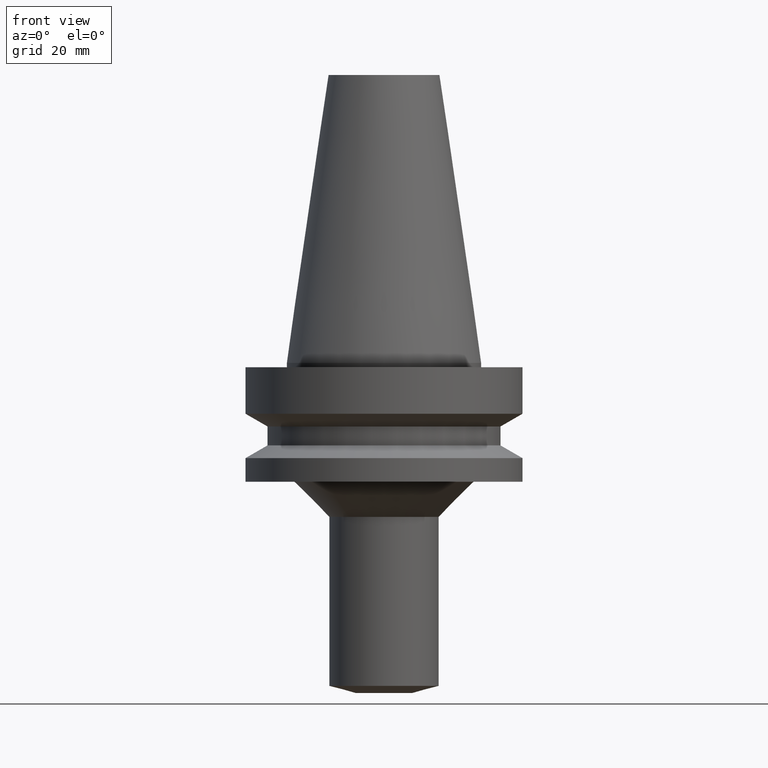
[diagram: clean part render]
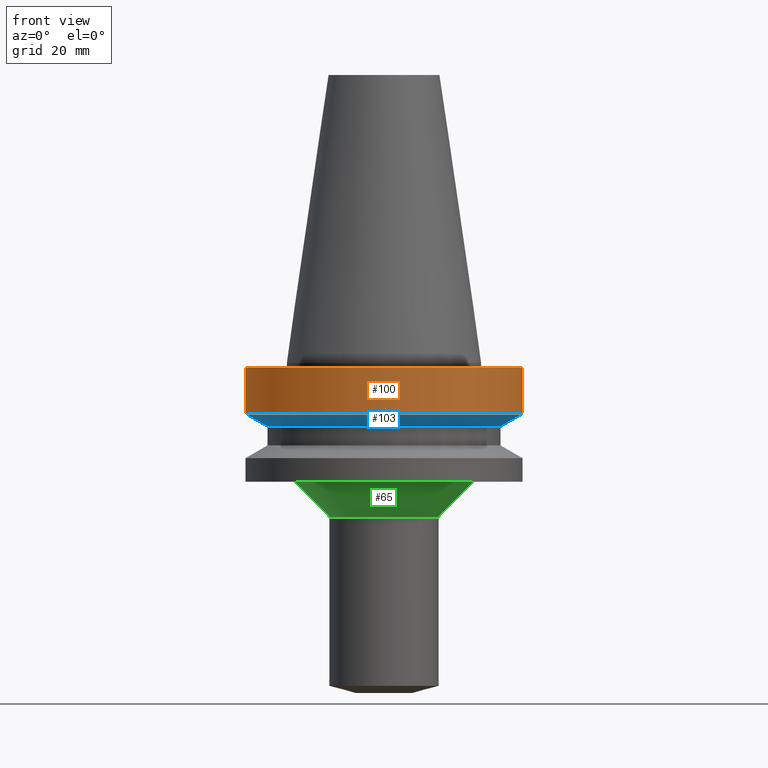
[diagram: same view with three faces highlighted in distinct colors, each labeled with its STEP entity id]
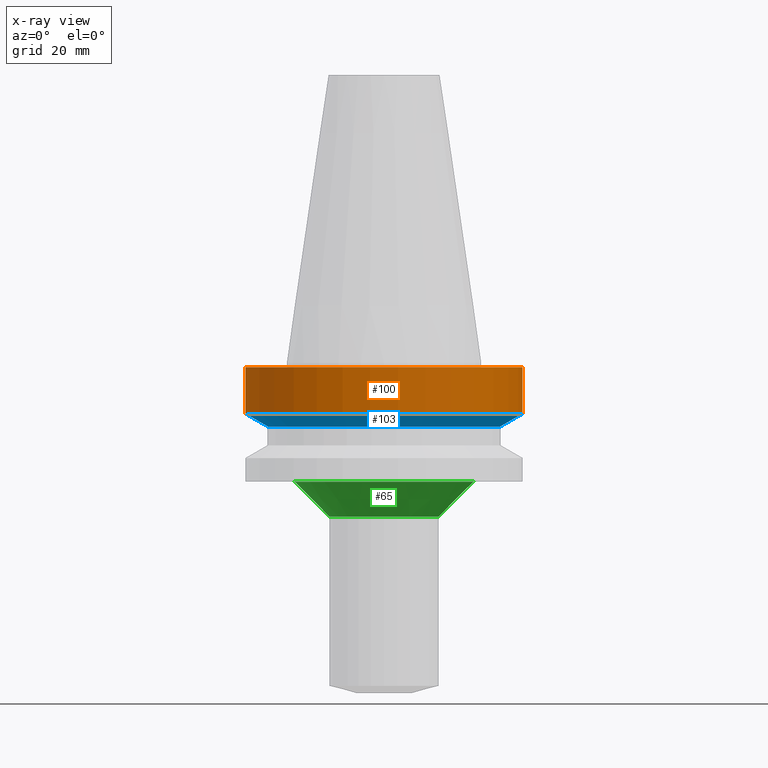
[diagram: x-ray of the same camera — body ghosted, the three highlighted faces saturated]
A machine part, front view with three faces highlighted in distinct colors.
The next image is the same camera in x-ray (body ghosted, the three faces saturated) — at least one of them is partly hidden behind the body in this view.
Their STEP definitions:

[orange] entity #100 — the highlighted cylindrical surface (bore or boss wall) has radius 31.5 mm, axis along (0, -0, -1).
#75=EDGE_CURVE('Unnamed[1]',#176,#176,#177,.T.);
#100=ADVANCED_FACE('Unnamed[1]',(#212,#213),#214,.T.);
#111=EDGE_CURVE('Unnamed[1]',#230,#230,#231,.T.);
#176=VERTEX_POINT('',#302);
#177=CIRCLE('',#303,31.4999999999996);
#212=FACE_BOUND('',#347,.T.);
#213=FACE_BOUND('',#348,.T.);
#214=CYLINDRICAL_SURFACE('',#349,31.5);
#230=VERTEX_POINT('',#369);
#231=CIRCLE('',#370,31.5000000000003);
#302=CARTESIAN_POINT('',(6.12323399573568E-017,31.4999999999997,-0.999999999999825));
#303=AXIS2_PLACEMENT_3D('',#434,#435,#436);
#347=EDGE_LOOP('',(#471));
#348=EDGE_LOOP('',(#472));
#349=AXIS2_PLACEMENT_3D('',#473,#474,#475);
#369=CARTESIAN_POINT('',(7.08182973902923E-016,31.5000000000004,-11.5655056526664));
#370=AXIS2_PLACEMENT_3D('',#493,#494,#495);
#434=CARTESIAN_POINT('',(6.12323399573563E-017,4.53302750006958E-014,-0.999999999999815));
#435=DIRECTION('',(6.12323399573677E-017,-4.72374929569225E-016,-1.0));
#436=DIRECTION('',(2.40974695439514E-032,1.0,-4.72374929569225E-016));
#471=ORIENTED_EDGE('',*,*,#111,.F.);
#472=ORIENTED_EDGE('',*,*,#75,.T.);
#473=CARTESIAN_POINT('',(3.8470765693014E-016,4.2834835006425E-014,-6.28275282633308));
#474=DIRECTION('',(6.12323399573677E-017,-4.72374929569225E-016,-1.0));
#475=DIRECTION('',(2.40974695439514E-032,1.0,-4.72374929569225E-016));
#493=CARTESIAN_POINT('',(7.08182973902923E-016,4.03393950121542E-014,-11.5655056526663));
#494=DIRECTION('',(6.12323399573677E-017,-4.72374929569225E-016,-1.0));
#495=DIRECTION('',(2.40974695439514E-032,1.0,-4.72374929569225E-016));

[blue] entity #103 — the highlighted conical surface has half-angle 60 deg.
#95=EDGE_CURVE('Unnamed[1]',#205,#205,#206,.T.);
#103=ADVANCED_FACE('Unnamed[1]',(#217,#218),#219,.T.);
#111=EDGE_CURVE('Unnamed[1]',#230,#230,#231,.T.);
#205=VERTEX_POINT('',#338);
#206=CIRCLE('',#339,26.4999999999994);
#217=FACE_BOUND('',#353,.T.);
#218=FACE_BOUND('',#354,.T.);
#219=CONICAL_SURFACE('',#355,28.9999999999999,1.04719755119657);
#230=VERTEX_POINT('',#369);
#231=CIRCLE('',#370,31.5000000000003);
#338=CARTESIAN_POINT('',(8.8494551369045E-016,26.4999999999995,-14.4522569986152));
#339=AXIS2_PLACEMENT_3D('',#464,#465,#466);
#353=EDGE_LOOP('',(#477));
#354=EDGE_LOOP('',(#478));
#355=AXIS2_PLACEMENT_3D('',#479,#480,#481);
#369=CARTESIAN_POINT('',(7.08182973902923E-016,31.5000000000004,-11.5655056526664));
#370=AXIS2_PLACEMENT_3D('',#493,#494,#495);
#464=CARTESIAN_POINT('',(8.8494551369045E-016,3.89757660484277E-014,-14.4522569986152));
#465=DIRECTION('',(6.12323399573677E-017,-4.72374929569225E-016,-1.0));
#466=DIRECTION('',(2.40974695439514E-032,1.0,-4.72374929569225E-016));
#477=ORIENTED_EDGE('',*,*,#95,.F.);
#478=ORIENTED_EDGE('',*,*,#111,.T.);
#479=CARTESIAN_POINT('',(7.96564243796687E-016,3.9657580530291E-014,-13.0088813256408));
#480=DIRECTION('',(-6.12323399573677E-017,4.72374929569225E-016,1.0));
#481=DIRECTION('',(2.40974695439514E-032,1.0,-4.72374929569225E-016));
#493=CARTESIAN_POINT('',(7.08182973902923E-016,4.03393950121542E-014,-11.5655056526663));
#494=DIRECTION('',(6.12323399573677E-017,-4.72374929569225E-016,-1.0));
#495=DIRECTION('',(2.40974695439514E-032,1.0,-4.72374929569225E-016));

[green] entity #65 — the highlighted conical surface has half-angle 45 deg.
#57=EDGE_CURVE('Unnamed[1]',#147,#147,#148,.T.);
#65=ADVANCED_FACE('Unnamed[1]',(#159,#160),#161,.T.);
#81=EDGE_CURVE('Unnamed[1]',#185,#185,#186,.T.);
#147=VERTEX_POINT('',#266);
#148=CIRCLE('',#267,12.5);
#159=FACE_BOUND('',#281,.T.);
#160=FACE_BOUND('',#282,.T.);
#161=CONICAL_SURFACE('',#283,16.5000000000001,0.785398163397448);
#185=VERTEX_POINT('',#314);
#186=CIRCLE('',#315,20.5000000000002);
#266=CARTESIAN_POINT('',(2.14313189850787E-015,12.5,-35.0));
#267=AXIS2_PLACEMENT_3D('',#401,#402,#403);
#281=EDGE_LOOP('',(#414));
#282=EDGE_LOOP('',(#415));
#283=AXIS2_PLACEMENT_3D('',#416,#417,#418);
#314=CARTESIAN_POINT('',(1.65327317884891E-015,20.5000000000003,-26.9999999999997));
#315=AXIS2_PLACEMENT_3D('',#443,#444,#445);
#401=CARTESIAN_POINT('',(2.14313189850787E-015,2.92695273953421E-014,-35.0));
#402=DIRECTION('',(6.12323399573677E-017,-4.72374929569225E-016,-1.0));
#403=DIRECTION('',(2.40974695439514E-032,1.0,-4.72374929569225E-016));
#414=ORIENTED_EDGE('',*,*,#57,.F.);
#415=ORIENTED_EDGE('',*,*,#81,.T.);
#416=CARTESIAN_POINT('',(1.89820253867839E-015,3.1159027113619E-014,-30.9999999999999));
#417=DIRECTION('',(-6.12323399573677E-017,4.72374929569225E-016,1.0));
#418=DIRECTION('',(2.40974695439514E-032,1.0,-4.72374929569225E-016));
#443=CARTESIAN_POINT('',(1.65327317884891E-015,3.3048526831896E-014,-26.9999999999997));
#444=DIRECTION('',(6.12323399573676E-017,-4.72374929569225E-016,-1.0));
#445=DIRECTION('',(2.40974695439514E-032,1.0,-4.72374929569225E-016));